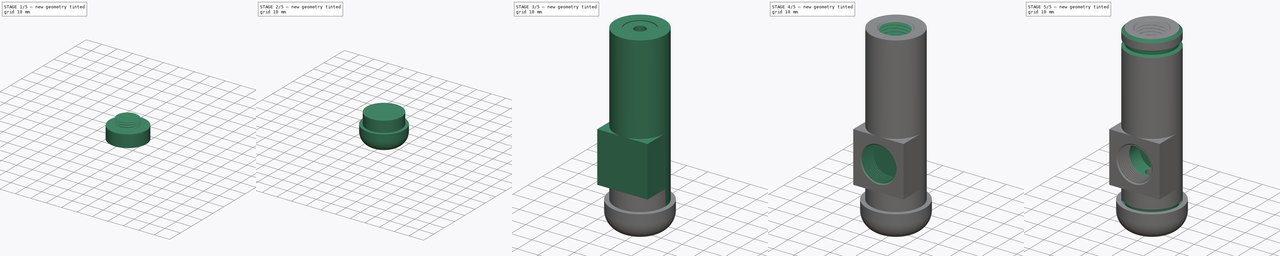
[diagram: build sequence overview — one tinted view per stage of 5, left to right]
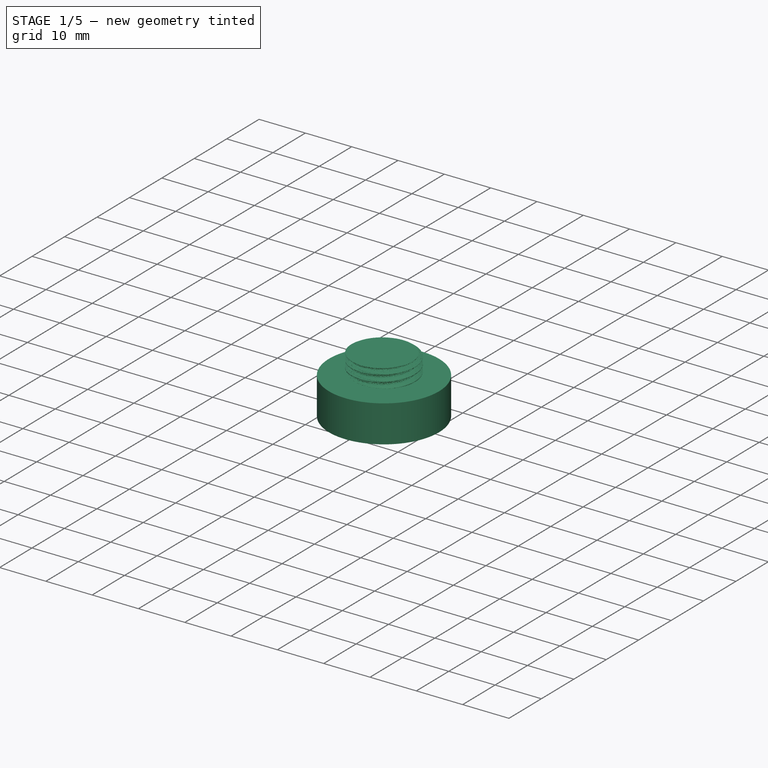
[diagram: stage 1 of 5 — iso view after this stage's code; geometry added in this stage tinted green]
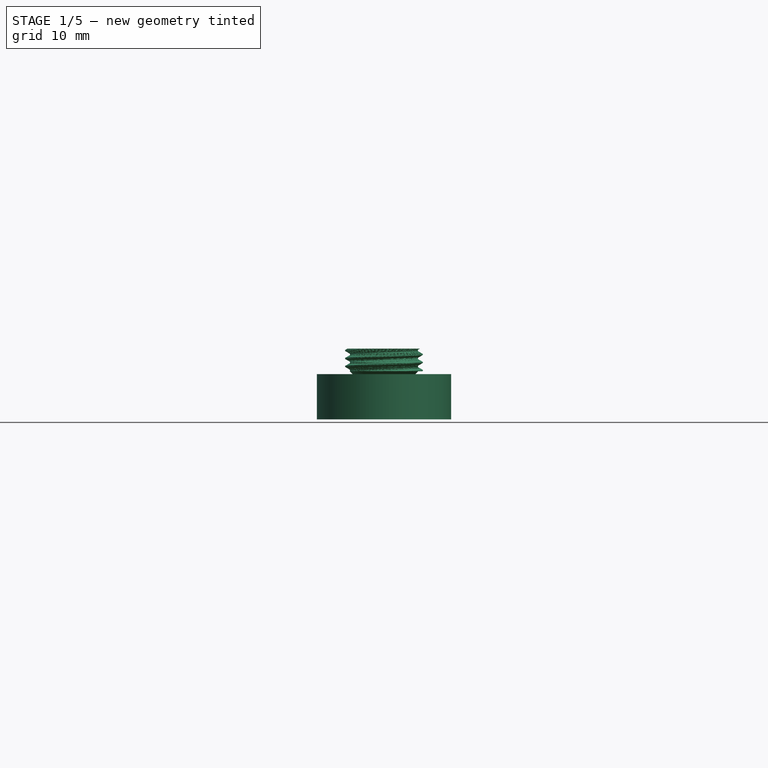
[diagram: stage 1 of 5 — front view after this stage's code; geometry added in this stage tinted green]
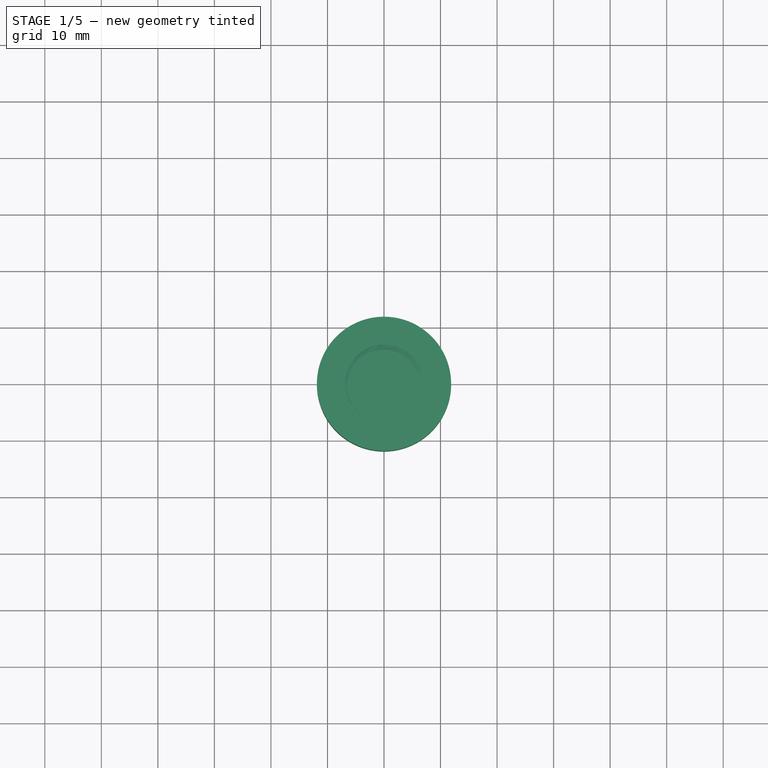
[diagram: stage 1 of 5 — top view after this stage's code; geometry added in this stage tinted green]
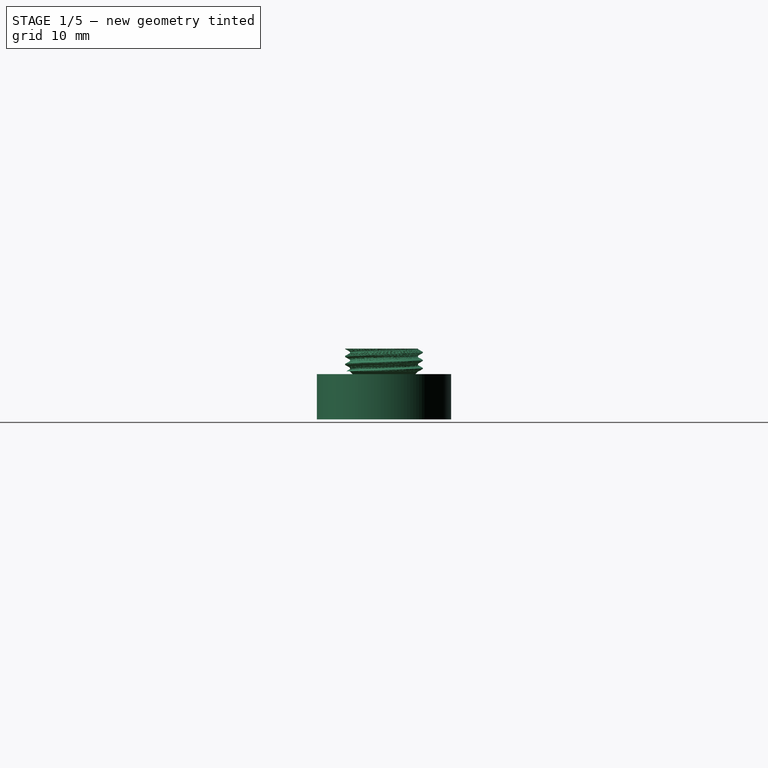
[diagram: stage 1 of 5 — right view after this stage's code; geometry added in this stage tinted green]
FCSTD DOCUMENT  (FreeCAD 1.1R20260325 (Git shallow))
Label: FinalSensorAdapterInsert
License: All rights reserved
LicenseURL: https://en.wikipedia.org/wiki/All_rights_reserved
objects: Sketcher::SketchObject×12, PartDesign::Pad×6, PartDesign::Pocket×5, PartDesign::Chamfer×5, App::Point×4, Part::Part2DObjectPython×3, Part::Helix×3, PartDesign::SubtractivePipe×2, PartDesign::Body×2, App::Part×2, PartDesign::Fillet×2, Spreadsheet::Sheet×1, PartDesign::Groove×1, PartDesign::AdditivePipe×1
note: 98 computed .brp shape members not serialized (recipe doc carries the construction recipe); baked Part::Feature solids carry a one-line shape summary decoded from their .brp

FEATURE [PartDesign::Body] Body001  label="SensorHeadInsertBody"
  AllowCompound = false
  Group = -> [Sketch010,Pad002,Sketch,Pad,Sketch011,Pad003,Sketch012,Sketch013,Pocket,Sketch014,Pocket001,Chamfer,Sketch015,Pocket002,Chamfer001,VThreadProfile,Helix,SubtractivePipe,VThreadProfile001,Helix001,SubtractivePipe001,Sketch016,Pocket003,Chamfer002,Groove,Chamfer003]
  Origin = -> Origin003
  Tip = -> Chamfer003
FEATURE [App::Part] Part001  label="SensorHeadInsert"
  Group = -> [Body001]
  Origin = -> Origin002
FEATURE [Sketcher::SketchObject] Sketch017
  ArcFitTolerance = 1e-06
  AttachmentSupport = -> [XY_Plane004]
  ExternalTypes = [0]
  FullyConstrained = true
  MakeInternals = false
  MapMode = 5
  _ExternalGeoVersion = 0
  expr: Constraints[1] = <<S>>.nipple_minor_diameter
  sketch-geometry (1):
    g0: Circle CenterX=0 CenterY=0 CenterZ=0 NormalX=0 NormalY=0 NormalZ=1 AngleXU=0 Radius=6.06
  constraints (2):
    c: Coincident(g0,g-1)
    c: Diameter(g0) = 12.12
FEATURE [PartDesign::Pad] Pad004  label="EndPad"
  Direction = (0,0,1)
  Length = 0.5
  Length2 = 10
  Profile = -> Sketch017
  ReferenceAxis = -> Sketch017 [N_Axis]
  Refine = true
  SideType = 0
  Suppressed = false
  Type = 0
  Type2 = 0
FEATURE [PartDesign::Chamfer] Chamfer004  label="EndPadChamfer"
  Angle = 45
  Base = -> Pad004 [Edge2]
  BaseFeature = -> Pad004
  ChamferType = 0
  FlipDirection = false
  Refine = true
  Size = 0.4999
  Size2 = 1
  SupportTransform = false
  Suppressed = false
  UseAllEdges = false
FEATURE [Part::Part2DObjectPython] VThreadProfile002  # Draft 2D object (typed FeaturePython)
  Area = 130.115
  AttachmentSupport = -> [Chamfer004]
  Closed = true
  Continuity = C2
  Deviation = 0.1
  Height = 4
  Helix = Helix002
  Instructions = <same value as first occurrence — deduplicated (x3 in doc)>
  InternalOrExternal = 1
  MajorDiameter = 13.75
  MajorDiameterFinal = 13.75
  MakeFace = true
  MapMode = 11
  MinorDiameter = 12.2236
  MinorDiameterFinal = 12.2236
  Parameterization = 1
  Pitch = 1.41
  Placement = pos=(0,0,0.5) rot=(0,0,1;1.5708rad)
  Points = (66) [(6.0803,0.586285,0),(5.96709,1.16154,0),(5.80784,1.72289,0),(5.60096,2.26641,0),(5.34693,2.78797,0),(5.04722,3.28346,0),(4.70397,3.74889,0),+59 more]
  Presets = 0
  Quality = 11
  ThreadCount = 2.83688
  Tolerance = 0
  Variants = 0
  Version = 1.96
  d_delta = 1.52637
  external2S_data = <same value as first occurrence — deduplicated (x3 in doc)>
  external3S_data = <same value as first occurrence — deduplicated (x3 in doc)>
  external45_data = <same value as first occurrence — deduplicated (x3 in doc)>
  external_data = <same value as first occurrence — deduplicated (x3 in doc)>
  internal2S_data = <same value as first occurrence — deduplicated (x3 in doc)>
  internal3S_data = <same value as first occurrence — deduplicated (x3 in doc)>
  internal45_data = <same value as first occurrence — deduplicated (x3 in doc)>
  internal_data = <same value as first occurrence — deduplicated (x3 in doc)>
  preset_names = <blob: 3959 chars omitted>
  presets_data = <same value as first occurrence — deduplicated (x3 in doc)>
  expr: MajorDiameter = <<S>>.nipple_thread_diameter
  expr: Pitch = <<S>>.nipple_pitch
FEATURE [Part::Helix] Helix002
  Angle = 0
  AttacherType = Attacher::AttachEngine3D
  AttachmentSupport = -> [Chamfer004]
  Height = 4
  Length = 18.2679
  LocalCoord = 0
  MapMode = 11
  Pitch = 1.41
  Placement = pos=(0,0,0.5) rot=(0,0,1;1.5708rad)
  Radius = 1
  SegmentLength = 1
  Style = 0
  expr: AttachmentOffset = VThreadProfile002.AttachmentOffset
  expr: AttachmentSupport = VThreadProfile002.AttachmentSupport
  expr: Height = VThreadProfile002.ThreadCount * VThreadProfile002.Pitch
  expr: MapMode = VThreadProfile002.MapMode
  expr: MapPathParameter = VThreadProfile002.MapPathParameter
  expr: MapReversed = VThreadProfile002.MapReversed
  expr: Pitch = VThreadProfile002.Pitch
  expr: SegmentLength = 1
FEATURE [PartDesign::AdditivePipe] AdditivePipe  label="Threads"
  AuxiliaryCurvilinear = true
  AuxiliarySpineTangent = false
  BaseFeature = -> Chamfer004
  Binormal = (0,0,0)
  Mode = 2
  Profile = -> VThreadProfile002
  Refine = true
  Spine = -> Helix002 [Edge1,Edge2,Edge3]
  SpineTangent = false
  Suppressed = false
  Transformation = 0
  Transition = 0
FEATURE [Sketcher::SketchObject] Sketch018
  ArcFitTolerance = 1e-06
  AttachmentSupport = -> [AdditivePipe]
  ExternalTypes = [0]
  FullyConstrained = true
  MakeInternals = false
  MapMode = 5
  Placement = pos=(0,0,0) rot=(1,0,0;3.14159rad)
  _ExternalGeoVersion = 0
  expr: Constraints[1] = <<S>>.nipple_thread_diameter + <<S>>.dimension_wall_thickness * 2
  sketch-geometry (1):
    g0: Circle CenterX=0 CenterY=0 CenterZ=0 NormalX=0 NormalY=0 NormalZ=1 AngleXU=0 Radius=11.875
  constraints (2):
    c: Coincident(g0,g-1)
    c: Diameter(g0) = 23.75
FEATURE [PartDesign::Pad] Pad005  label="NippleBasePad"
  BaseFeature = -> AdditivePipe
  Direction = (0,0,-1)
  Length = 8
  Length2 = 10
  Profile = -> Sketch018
  ReferenceAxis = -> Sketch018 [N_Axis]
  Refine = true
  SideType = 0
  Suppressed = false
  Type = 0
  Type2 = 0
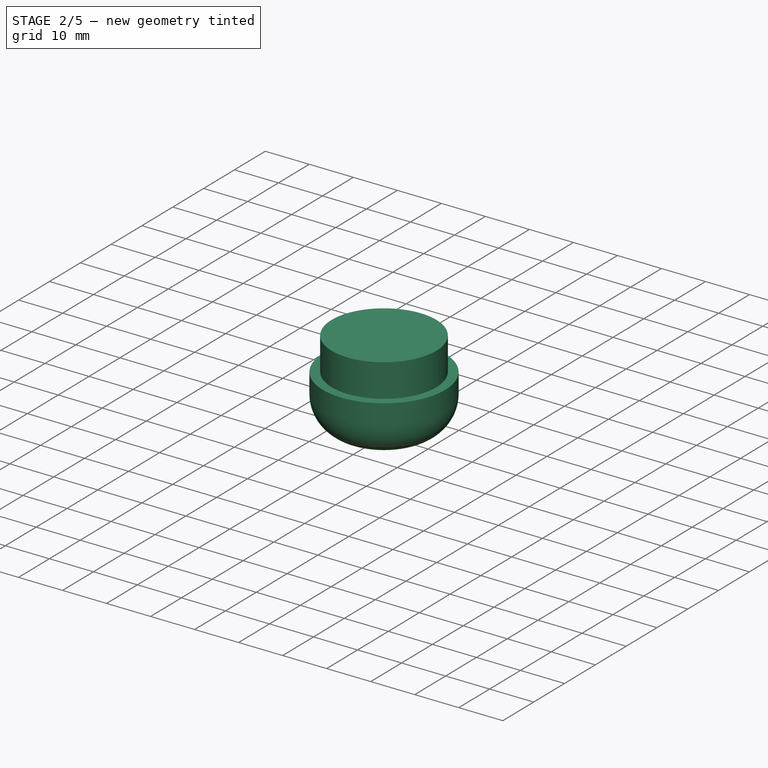
[diagram: stage 2 of 5 — iso view after this stage's code; geometry added in this stage tinted green]
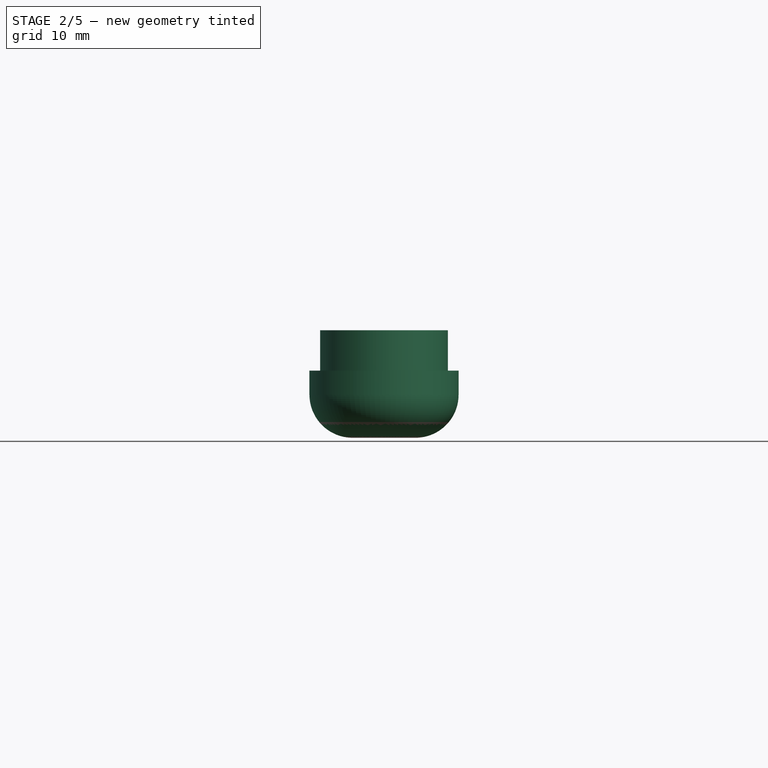
[diagram: stage 2 of 5 — front view after this stage's code; geometry added in this stage tinted green]
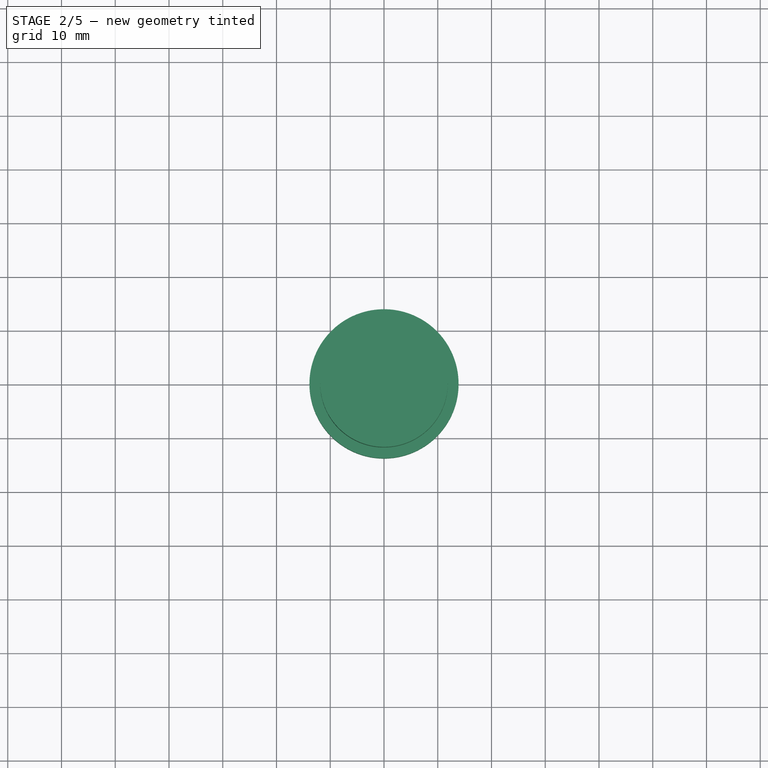
[diagram: stage 2 of 5 — top view after this stage's code; geometry added in this stage tinted green]
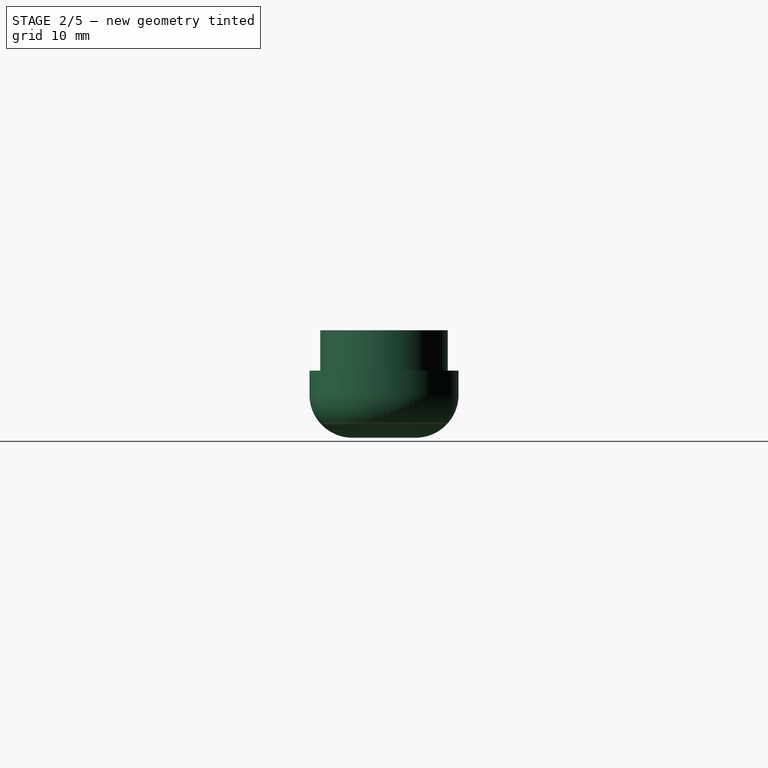
[diagram: stage 2 of 5 — right view after this stage's code; geometry added in this stage tinted green]
FEATURE [Sketcher::SketchObject] Sketch010
  ArcFitTolerance = 1e-06
  AttachmentSupport = -> [XY_Plane003]
  ExternalTypes = [0]
  FullyConstrained = true
  MakeInternals = false
  MapMode = 5
  _ExternalGeoVersion = 0
  expr: Constraints[1] = <<S>>.nipple_thread_diameter + <<S>>.dimension_wall_thickness * 2
  sketch-geometry (1):
    g0: Circle CenterX=0 CenterY=0 CenterZ=0 NormalX=0 NormalY=0 NormalZ=1 AngleXU=0 Radius=11.875
  constraints (2):
    c: Coincident(g0,g-1)
    c: Diameter(g0) = 23.75
FEATURE [PartDesign::Pad] Pad002  label="BasePad"
  Direction = (0,0,1)
  Length = 12
  Length2 = 10
  Profile = -> Sketch010
  ReferenceAxis = -> Sketch010 [N_Axis]
  Refine = true
  SideType = 0
  Suppressed = false
  Type = 0
  Type2 = 0
  expr: Length = <<S>>.dimension_base_height
FEATURE [Sketcher::SketchObject] Sketch019
  ArcFitTolerance = 1e-06
  AttachmentSupport = -> [Pad005]
  ExternalTypes = [0]
  FullyConstrained = true
  MakeInternals = false
  MapMode = 5
  Placement = pos=(0,0,-8) rot=(1,0,0;3.14159rad)
  _ExternalGeoVersion = 0
  expr: Constraints[2] = <<S>>.nipple_thread_diameter + <<S>>.dimension_wall_thickness * 2
  expr: Constraints[3] = <<S>>.nipple_thread_diameter + <<S>>.dimension_wall_thickness * 2 + 4
  sketch-geometry (2):
    g0: Circle CenterX=0 CenterY=0 CenterZ=0 NormalX=0 NormalY=0 NormalZ=1 AngleXU=0 Radius=13.875
    g1: Circle CenterX=0 CenterY=0 CenterZ=0 NormalX=0 NormalY=0 NormalZ=1 AngleXU=0 Radius=11.875
  constraints (4):
    c: Coincident(g0,g-1)
    c: Coincident(g1,g0)
    c: Diameter(g1) = 23.75
    c: Diameter(g0) = 27.75
FEATURE [PartDesign::Pad] Pad006  label="NipplePadShell"
  BaseFeature = -> Pad005
  Direction = (0,0,-1)
  Length = 12.5
  Length2 = 10
  Profile = -> Sketch019
  ReferenceAxis = -> Sketch019 [N_Axis]
  Refine = true
  Reversed = true
  SideType = 0
  Suppressed = false
  Type = 0
  Type2 = 0
FEATURE [Sketcher::SketchObject] Sketch020
  ArcFitTolerance = 1e-06
  AttachmentSupport = -> [Pad006]
  ExternalTypes = [0]
  FullyConstrained = true
  MakeInternals = false
  MapMode = 5
  Placement = pos=(0,0,-8) rot=(1,0,0;3.14159rad)
  _ExternalGeoVersion = 0
  sketch-geometry (1):
    g0: Circle CenterX=0 CenterY=0 CenterZ=0 NormalX=0 NormalY=0 NormalZ=1 AngleXU=0 Radius=0.75
  constraints (2):
    c: Coincident(g0,g-1)
    c: Diameter(g0) = 1.5
FEATURE [PartDesign::Pocket] Pocket004  label="NippleHole"
  BaseFeature = -> Pad006
  Direction = (0,0,1)
  Length = 5
  Length2 = 5
  Profile = -> Sketch020
  ReferenceAxis = -> Sketch020 [N_Axis]
  Refine = true
  SideType = 0
  Suppressed = false
  Type = 1
  Type2 = 0
FEATURE [PartDesign::Fillet] Fillet  label="NippleHoleFillet"
  Base = -> Pocket004 [Edge24]
  BaseFeature = -> Pocket004
  Radius = 1
  Refine = true
  SupportTransform = false
  Suppressed = false
  UseAllEdges = false
FEATURE [PartDesign::Fillet] Fillet001  label="NippleFillet"
  Base = -> Fillet [Edge2]
  BaseFeature = -> Fillet
  Radius = 8
  Refine = true
  SupportTransform = false
  Suppressed = false
  UseAllEdges = false
FEATURE [PartDesign::Body] Body  label="SensorHeadNippleBody"
  AllowCompound = false
  Group = -> [Sketch017,Pad004,Chamfer004,VThreadProfile002,Helix002,AdditivePipe,Sketch018,Pad005,Sketch019,Pad006,Sketch020,Pocket004,Fillet,Fillet001]
  Origin = -> Origin004
  Tip = -> Fillet001
FEATURE [App::Part] Part  label="SensorHeadNipple"
  Group = -> [Body]
  Origin = -> Origin
FEATURE [App::Point] Origin005  label="Origin"
  Role = Origin
FEATURE [App::Point] Origin006  label="Origin"
  Role = Origin
FEATURE [App::Point] Origin007  label="Origin"
  Role = Origin
FEATURE [App::Point] Origin008  label="Origin"
  Role = Origin
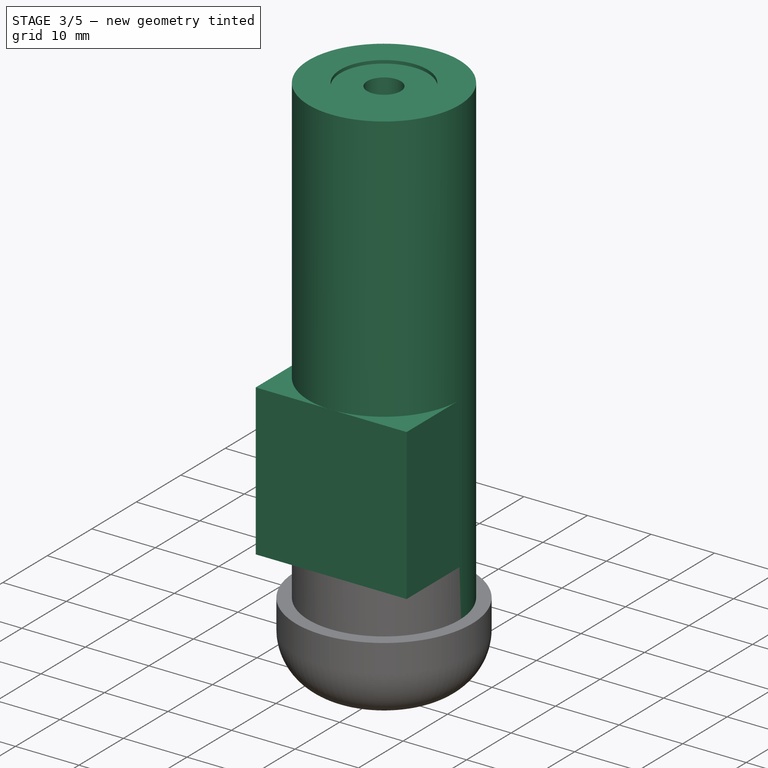
[diagram: stage 3 of 5 — iso view after this stage's code; geometry added in this stage tinted green]
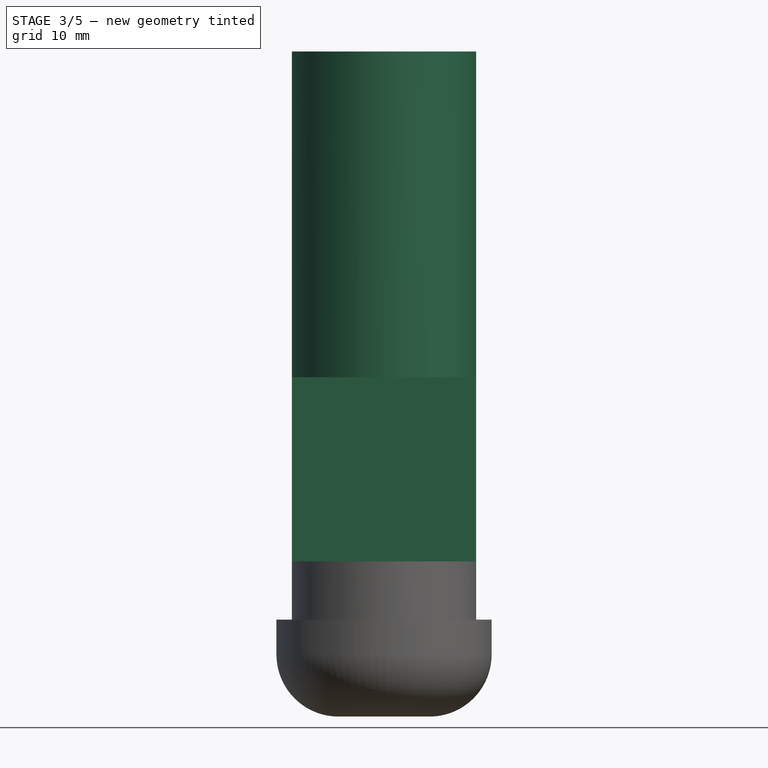
[diagram: stage 3 of 5 — front view after this stage's code; geometry added in this stage tinted green]
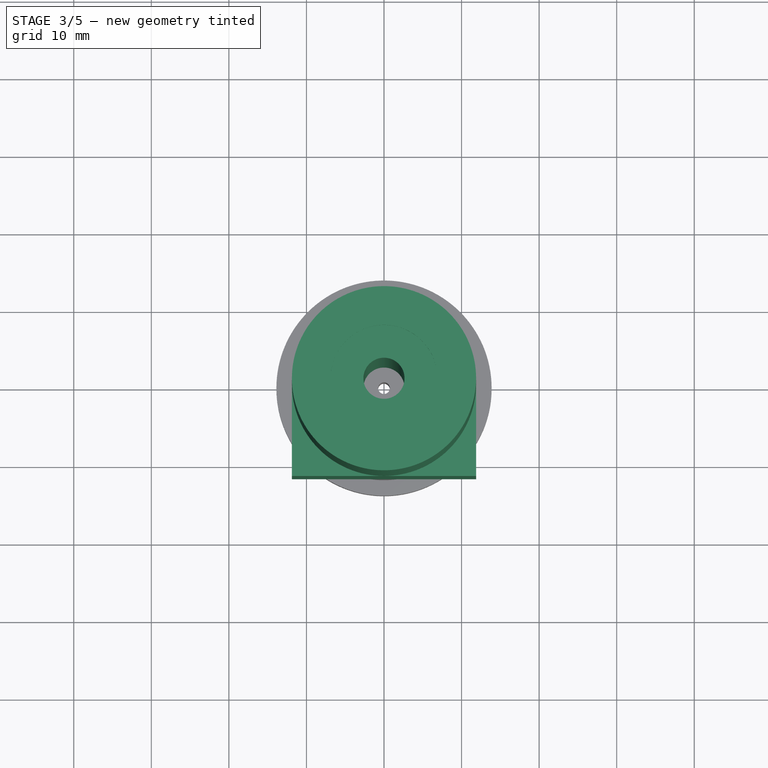
[diagram: stage 3 of 5 — top view after this stage's code; geometry added in this stage tinted green]
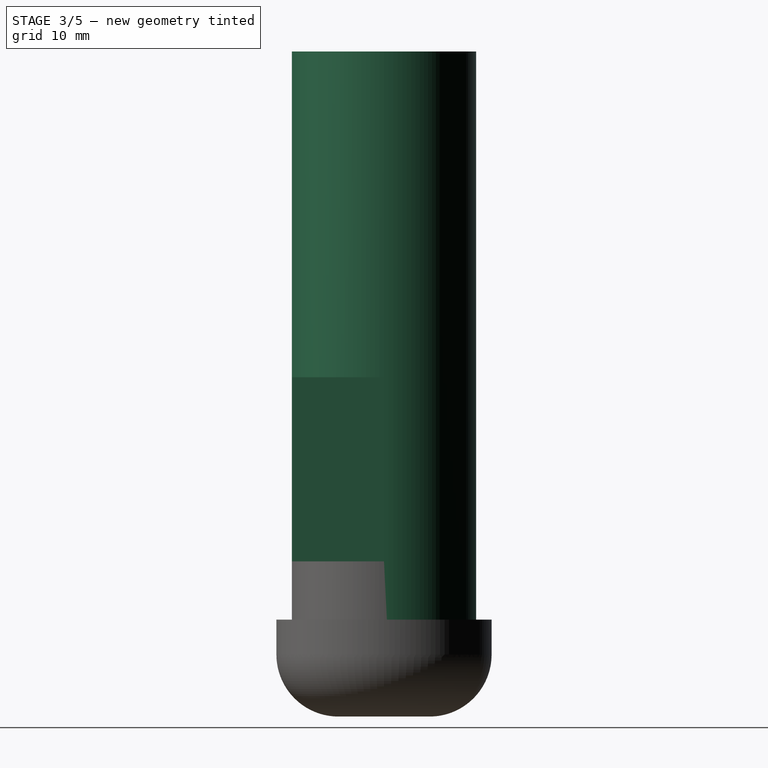
[diagram: stage 3 of 5 — right view after this stage's code; geometry added in this stage tinted green]
FEATURE [Spreadsheet::Sheet] Spreadsheet  label="S"
  cells = A2='zero_width; B2(zero_width)=18; A3='zero_length; B3(zero_length)=23.5; A4='zero_usb_width; B4(zero_usb_width)=9; A5='zero_usb_nib; B5(zero_usb_nib)=1; A6='zero_pcb_thickness; B6(zero_pcb_thickness)=1.15; A7='zero_usb_thickness; B7(zero_usb_thickness)=3.25; C7='This is also the thickest top part; A8='zero_bottom_height; B8(zero_bottom_height)=1.25; A9='zero_bottom_chip_width; B9(zero_bottom_chip_width)=7; A10='zero_pad_width; B10(zero_pad_width)=2.5; A16='ads1115_width; B16(ads1115_width)=28; A17='ads1115_length; B17(ads1115_length)=17.2; A18='ads115_pcb_thickness; B18(ads115_pcb_thickness)=1.5; A19='ads115_holes; B19(ads115_holes)=2.4; A22='charger_width; B22(charger_width)=17.02; A23='charger_length; B23(charger_length)=28; A24='charger_usb_width; B24(charger_usb_width)=9; A25='charger_holes; B25(charger_holes)=1.5; A26='charger_pcb_thickness; B26(charger_pcb_thickness)=1.6; A31='oled_width; B31(oled_width)=27.5; C31='https://thepihut.com/products/blue-0-96-oled-display-module-128x94?srsltid=AfmBOoqjCmrL4VVzqR_EE5hcJSdx-CRojF6zMIyrO1bcx0NnoYyN6zFz; A32='oled_length; B32(oled_length)=27.5; A33='oled_holes; B33(oled_holes)=2; A34='oled_pcb_thickness; B34(oled_pcb_thickness)=1.25; A35='oled_screen_height; B35(oled_screen_height)=1.75; A36='oled_screen_width; B36(oled_screen_width)=24.7; A37='oled_screen_length; B37(oled_screen_length)=16.6; A38='oled_hole_top_edge; B38(oled_hole_top_edge)=1.1; A39='oled_hole_side_edge; B39(oled_hole_side_edge)=1.15; A40='oled_hole_bottom_edge; B40(oled_hole_bottom_edge)=1; A43='battery_width; B43(battery_width)=30; A44='battery_length; B44(battery_length)=42; A45='batter_depth; B45(batter_depth)=8.2; A49='switch_width; B49(switch_width)=11.67; A50='switch_length; B50(switch_length)=18.65; A51='switch_depth; B51(switch_depth)=11.1; A52='swith_length; B52(swith_length)=6; A53='switch_button_diameter; B53(switch_button_diameter)=3.5; A54='switch_button_height; B54(switch_button_height)=1.75; A55='switch_top_thingies; B55(switch_top_thingies)=0.6; A61='vr_back_depth; B61(vr_back_depth)=1.3; A62='vr_hole; B62(vr_hole)=3.7; A63='vr_hole_top_edge; B63(vr_hole_top_edge)=1; A66='sensor_diameter; B66(sensor_diameter)=29.5; A67='sensor_length; B67(sensor_length)=41.5; A68='sensor_thread_diameter; B68(sensor_thread_diameter)=16; A69='sensor_thread_pitch; B69(sensor_thread_pitch)=1; A70='sensor_thread_per_inch; B70(sensor_thread_per_inch)=25.4; A71='sensor_thread_length; B71(sensor_thread_length)=7.5; A72='sensor_smaller_body_diameter; B72(sensor_smaller_body_diameter)=26.3; A74='nipple_minor_diameter; B74(nipple_minor_diameter)=12.12; A75='nipple_pitch; B75(nipple_pitch)=1.41; A76='nipple_thread_diameter; B76(nipple_thread_diameter)=13.75; A77='nipple_thread_per_inch; B77(nipple_thread_per_inch)=18; A78='nipple_thread_length; B78(nipple_thread_length)=12.6; A80='dimension_base_height; B80(dimension_base_height)=12; A81='dimension_extender_height; B81(dimension_extender_height)=42; A83='insert_diameter; B83(insert_diameter)=5.3; A85='dimension_wall_thickness; B85(dimension_wall_thickness)=5
FEATURE [Sketcher::SketchObject] Sketch
  ArcFitTolerance = 1e-06
  AttachmentSupport = -> [Pad002]
  ExternalTypes = [0]
  FullyConstrained = true
  MakeInternals = false
  MapMode = 5
  Placement = pos=(0,0,12) rot=(0,0,1;0rad)
  _ExternalGeoVersion = 0
  expr: Constraints[10] = <<S>>.nipple_thread_diameter + <<S>>.dimension_wall_thickness * 2
  expr: Constraints[11] = (<<S>>.nipple_thread_diameter + <<S>>.dimension_wall_thickness * 2) / 2
  expr: Constraints[6] = <<S>>.nipple_thread_diameter + <<S>>.dimension_wall_thickness * 2
  expr: Constraints[9] = (<<S>>.nipple_thread_diameter + <<S>>.dimension_wall_thickness * 2) / 2
  sketch-geometry (4):
    g0: LineSegment StartX=-11.875 StartY=8.47222e-08 StartZ=0 EndX=-11.875 EndY=-11.875 EndZ=0
    g1: LineSegment StartX=-11.875 StartY=-11.875 StartZ=0 EndX=11.875 EndY=-11.875 EndZ=0
    g2: LineSegment StartX=11.875 StartY=-11.875 StartZ=0 EndX=11.875 EndY=-4.26891e-05 EndZ=0
    g3: ArcOfCircle CenterX=0 CenterY=0 CenterZ=0 NormalX=0 NormalY=0 NormalZ=1 AngleXU=0 Radius=11.875 StartAngle=6.28318 EndAngle=9.42478
  constraints (12):
    c: Coincident(g0,g1)
    c: Coincident(g1,g2)
    c: Vertical(g0)
    c: Vertical(g2)
    c: Horizontal(g1)
    c: Coincident(g3,g-1)
    c: Diameter(g3) = 23.75
    c: Coincident(g3,g0)
    c: Coincident(g3,g2)
    c: DistanceY(g2,g2) = 11.875
    c: DistanceX(g0,g2) = 23.75
    c: DistanceX(g0,g3) = 11.875
FEATURE [PartDesign::Pad] Pad  label="SensorPad"
  BaseFeature = -> Pad002
  Direction = (0,0,1)
  Length = 23.75
  Length2 = 10
  Profile = -> Sketch
  ReferenceAxis = -> Sketch [N_Axis]
  Refine = true
  SideType = 0
  Suppressed = false
  Type = 0
  Type2 = 0
  expr: Length = <<S>>.nipple_thread_diameter + <<S>>.dimension_wall_thickness * 2
FEATURE [Sketcher::SketchObject] Sketch011
  ArcFitTolerance = 1e-06
  AttachmentSupport = -> [Pad]
  ExternalTypes = [0]
  FullyConstrained = true
  MakeInternals = false
  MapMode = 5
  Placement = pos=(0,0,35.75) rot=(0,0,1;0rad)
  _ExternalGeoVersion = 0
  expr: Constraints[1] = <<S>>.nipple_thread_diameter + <<S>>.dimension_wall_thickness * 2
  sketch-geometry (1):
    g0: Circle CenterX=0 CenterY=0 CenterZ=0 NormalX=0 NormalY=0 NormalZ=1 AngleXU=0 Radius=11.875
  constraints (2):
    c: Coincident(g0,g-1)
    c: Diameter(g0) = 23.75
FEATURE [PartDesign::Pad] Pad003  label="ExtensionPad"
  BaseFeature = -> Pad
  Direction = (0,0,1)
  Length = 42
  Length2 = 10
  Profile = -> Sketch011
  ReferenceAxis = -> Sketch011 [N_Axis]
  Refine = true
  SideType = 0
  Suppressed = false
  Type = 0
  Type2 = 0
  expr: Length = <<S>>.dimension_extender_height
FEATURE [Sketcher::SketchObject] Sketch013
  ArcFitTolerance = 1e-06
  ExternalTypes = [0]
  FullyConstrained = true
  MakeInternals = false
  MapMode = 5
  Placement = pos=(0,0,77.75) rot=(0,0,1;0rad)
  _ExternalGeoVersion = 0
  expr: Constraints[1] = <<S>>.insert_diameter
  sketch-geometry (1):
    g0: Circle CenterX=0 CenterY=0 CenterZ=0 NormalX=0 NormalY=0 NormalZ=1 AngleXU=0 Radius=2.65
  constraints (2):
    c: Coincident(g0,g-1)
    c: Diameter(g0) = 5.3
FEATURE [PartDesign::Pocket] Pocket  label="InsertPocketThruAll"
  BaseFeature = -> Pad003
  Direction = (0,0,-1)
  Length = 5
  Length2 = 5
  Profile = -> Sketch013
  ReferenceAxis = -> Sketch013 [N_Axis]
  Refine = true
  SideType = 0
  Suppressed = false
  Type = 1
  Type2 = 0
FEATURE [Sketcher::SketchObject] Sketch014
  ArcFitTolerance = 1e-06
  AttachmentSupport = -> [Pocket]
  ExternalTypes = [0]
  FullyConstrained = true
  MakeInternals = false
  MapMode = 5
  Placement = pos=(0,0,77.75) rot=(0,0,1;0rad)
  _ExternalGeoVersion = 0
  expr: Constraints[1] = <<S>>.nipple_thread_diameter
  sketch-geometry (1):
    g0: Circle CenterX=0 CenterY=0 CenterZ=0 NormalX=0 NormalY=0 NormalZ=1 AngleXU=0 Radius=6.875
  constraints (2):
    c: Coincident(g0,g-1)
    c: Diameter(g0) = 13.75
FEATURE [PartDesign::Pocket] Pocket001  label="NippleThreadChamferPocket"
  BaseFeature = -> Pocket
  Direction = (0,0,-1)
  Length = 0.5
  Length2 = 5
  Profile = -> Sketch014
  ReferenceAxis = -> Sketch014 [N_Axis]
  Refine = true
  SideType = 0
  Suppressed = false
  Type = 0
  Type2 = 0
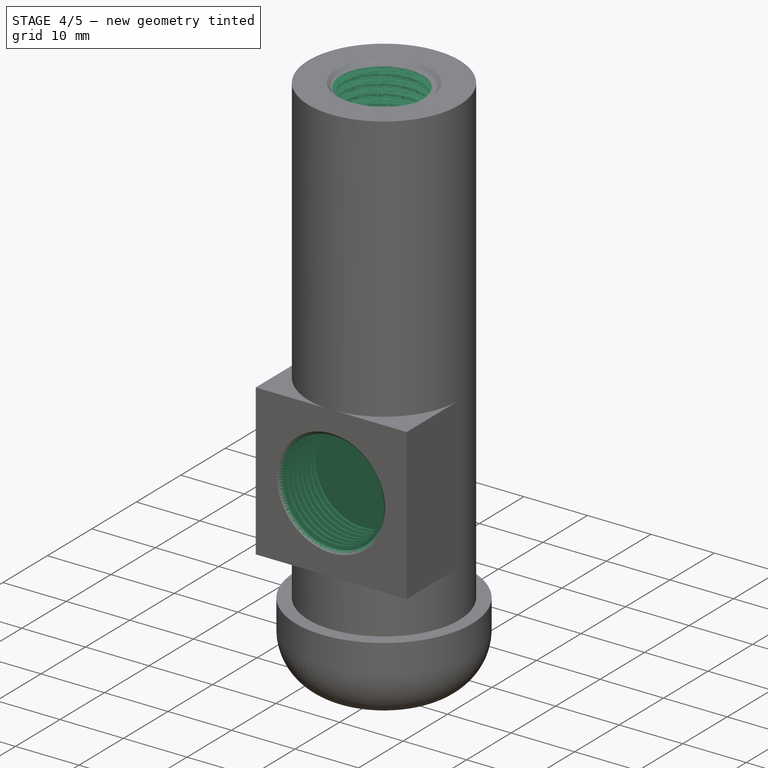
[diagram: stage 4 of 5 — iso view after this stage's code; geometry added in this stage tinted green]
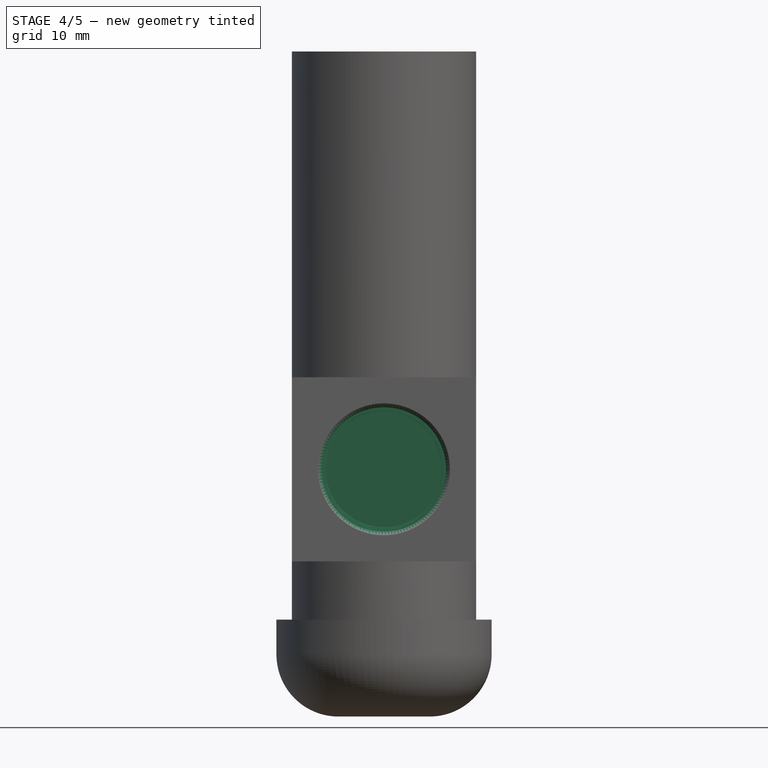
[diagram: stage 4 of 5 — front view after this stage's code; geometry added in this stage tinted green]
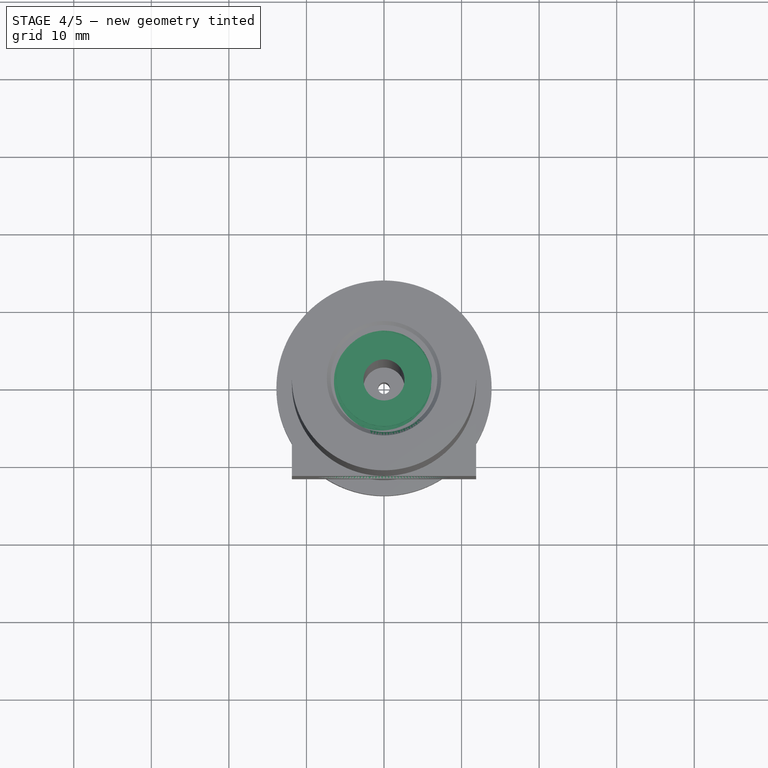
[diagram: stage 4 of 5 — top view after this stage's code; geometry added in this stage tinted green]
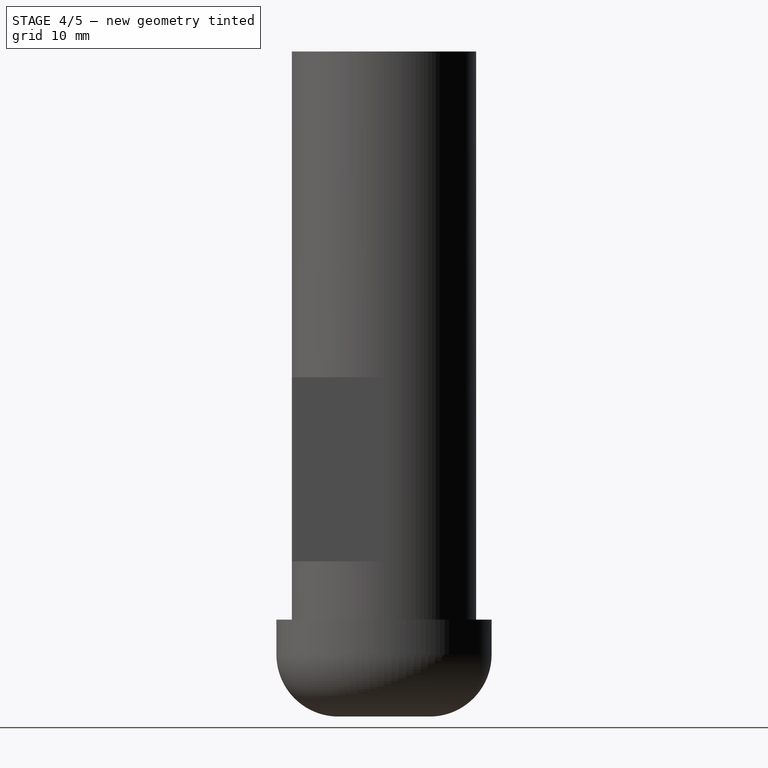
[diagram: stage 4 of 5 — right view after this stage's code; geometry added in this stage tinted green]
FEATURE [PartDesign::Chamfer] Chamfer  label="NippleThreadChamfer"
  Angle = 45
  Base = -> Pocket001 [Edge22]
  BaseFeature = -> Pocket001
  ChamferType = 0
  FlipDirection = false
  Refine = true
  Size = 0.4999
  Size2 = 1
  SupportTransform = false
  Suppressed = false
  UseAllEdges = false
FEATURE [Sketcher::SketchObject] Sketch015
  ArcFitTolerance = 1e-06
  AttachmentSupport = -> [Chamfer]
  ExternalTypes = [0]
  FullyConstrained = true
  MakeInternals = false
  MapMode = 5
  Placement = pos=(0,-11.875,0) rot=(1,0,0;1.5708rad)
  _ExternalGeoVersion = 0
  expr: Constraints[1] = <<S>>.sensor_thread_diameter
  expr: Constraints[2] = <<S>>.dimension_base_height + (<<S>>.nipple_thread_diameter + <<S>>.dimension_wall_thickness * 2) / 2
  sketch-geometry (1):
    g0: Circle CenterX=0 CenterY=23.875 CenterZ=0 NormalX=0 NormalY=0 NormalZ=1 AngleXU=0 Radius=8
  constraints (3):
    c: PointOnObject(g0,g-2)
    c: Diameter(g0) = 16
    c: DistanceY(g-1,g0) = 23.875
FEATURE [PartDesign::Pocket] Pocket002  label="SensorThreadChamferPocket"
  BaseFeature = -> Chamfer
  Direction = (0,1,-2e-16)
  Length = 0.5
  Length2 = 5
  Profile = -> Sketch015
  ReferenceAxis = -> Sketch015 [N_Axis]
  Refine = true
  SideType = 0
  Suppressed = false
  Type = 0
  Type2 = 0
FEATURE [PartDesign::Chamfer] Chamfer001  label="SensorThreadChamfer"
  Angle = 45
  Base = -> Pocket002 [Edge28]
  BaseFeature = -> Pocket002
  ChamferType = 0
  FlipDirection = false
  Refine = true
  Size = 0.4999
  Size2 = 1
  SupportTransform = false
  Suppressed = false
  UseAllEdges = false
FEATURE [Part::Part2DObjectPython] VThreadProfile  # Draft 2D object (typed FeaturePython)
  Area = 133.026
  AttachmentSupport = -> [Chamfer001]
  Closed = true
  Continuity = C2
  Deviation = 0.1
  Height = 12.6
  Helix = Helix
  Instructions = Expand this with the ... button to view instructions | Sweep this object along a helix of the same pitch to produce your thread. | It is recommended to make the helix in the ThreadProfile workbench. | If there is an active Body the ThreadProfile object will be put into it.,If not it can be dragged and dropped into the body later. | If there is an active Body when the helix is made there will be made a ShapeBinder for it | For internal threads you will need to cut the Sweep object out of a cylinder, or if using Part Design sweep it as a Subtractive Pipe. | Always use Frenet mode | I have provided some presets, but it is possible there could be some errors.  Double check for mission critical applications. | Also, the tolerances might be different from what you wish to have.  I believe the internal minor diameters are all minimum and the external are all maximum.
  InternalOrExternal = 0
  MajorDiameter = 13.75
  MajorDiameterFinal = 13.95
  MakeFace = true
  MapMode = 11
  MinorDiameter = 12.122
  MinorDiameterFinal = 12.322
  Parameterization = 1
  Pitch = 1.41
  Placement = pos=(9e-16,0,77.75) rot=(0.707107,-0.707107,0;3.14159rad)
  Points = (66) [(6.13257,0.591326,0),(6.0475,1.17719,0),(5.9066,1.75219,0),(5.71116,2.31101,0),(5.46298,2.84849,0),(5.16437,3.35967,0),(4.81807,3.83982,0),+59 more]
  Presets = 0
  Quality = 11
  ThreadCount = 8.93617
  Tolerance = 0.2
  Variants = 0
  Version = 1.96
  d_delta = 1.62798
  external2S_data = [-0.00461051,-0.00886426,-0.0128148,-0.0165028,-0.0199596,-0.0232105,-0.0262759,-0.0291725,-0.0319145,-0.0345137,-0.0369805,-0.0393235,-0.0415505,-0.0436681,-0.0456823,-0.0475981,-0.0494204,-0.0511532,-0.0528003,-0.0543649,-0.0558502,+698 more]
  external3S_data = [-0.00677828,-0.0128149,-0.0182584,-0.0232106,-0.0277444,-0.0319145,-0.0357632,-0.0393236,-0.0426227,-0.0456823,-0.0485208,-0.0511533,-0.0535928,-0.0558503,-0.0579353,-0.059856,-0.0616195,-0.0632319,-0.0646984,-0.0660239,-0.0672123,+698 more]
  external45_data = [-0.00137363,-0.00271738,-0.00403219,-0.00531893,-0.00657844,-0.00781148,-0.00901878,-0.010201,-0.0113589,-0.012493,-0.0136039,-0.0146921,-0.0157583,-0.0168028,-0.0178261,-0.0188288,-0.0198112,-0.0207738,-0.0217169,-0.0226409,-0.0235462,+698 more]
  external_data = [-0.00235387,-0.00461052,-0.00677828,-0.00886428,-0.0108747,-0.0128149,-0.0146895,-0.0165028,-0.0182584,-0.0199597,-0.0216095,-0.0232106,-0.0247653,-0.0262759,-0.0277444,-0.0291725,-0.0305621,-0.0319145,-0.0332313,-0.0345138,-0.0357632,+698 more]
  internal2S_data = [0,0,0,0,0,0,0,0,0,0,0,0,0,0,0,0,0,0,0,0,0,0,0,0,0,0,0,0,0,0,0,0,0,0,0,0,0,0,0,0,0,0,0,0,0,0,0,0,0,0,0,0,0,0,0,0,0,0,0,0,0,0,0,0,0,0,0,0,0,0,0,0,0,0,0,0,0,0,0,0,0,0,0,0,0,0,0,0,0,0,0.00481128,0.00962256,0.0144338,0.0192451,0.0240564,+624 more]
  internal3S_data = [0,0,0,0,0,0,0,0,0,0,0,0,0,0,0,0,0,0,0,0,0,0,0,0,0,0,0,0,0,0,0,0,0,0,0,0,0,0,0,0,0,0,0,0,0,0,0,0,0,0,0,0,0,0,0,0,0,0,0,0,0.00721688,0.0144338,0.0216506,0.0288675,0.0360844,0.0433013,0.0505181,0.057735,0.0649519,0.0721688,0.0793857,0.0866025,+647 more]
  internal45_data = [0,0,0,0,0,0,0,0,0,0,0,0,0,0,0,0,0,0,0,0,0,0,0,0,0,0,0,0,0,0,0,0,0,0,0,0,0,0,0,0,0,0,0,0,0,0,0,0,0,0,0,0,0,0,0,0,0,0,0,0,0,0,0,0,0,0,0,0,0,0,0,0,0,0,0,0,0,0,0,0,0,0,0,0,0,0,0,0,0,0,0,0,0,0,0,0,0,0,0,0,0,0,0,0,0,0,0,0,0,0,0,0,0,0,0,0,0,0,0,0,+599 more]
  internal_data = [0,0,0,0,0,0,0,0,0,0,0,0,0,0,0,0,0,0,0,0,0,0,0,0,0,0,0,0,0,0,0,0,0,0,0,0,0,0,0,0,0,0,0,0,0,0,0,0,0,0,0,0,0,0,0,0,0,0,0,0,0,0,0,0,0,0,0,0,0,0,0,0,0,0,0,0,0,0,0,0,0,0,0,0,0,0,0,0,0,0,0,0,0,0,0,0,0,0,0,0,0,0,0,0,0,0,0,0,0,0,0,0,0,0,0,0,0,0,0,0,+599 more]
  preset_names = <blob: 3959 chars omitted>
  presets_data = [0,0,0,2.20878,24.1173,24.6888,0.25,0.693,0.729,0.25,0.793,0.829,0.25,0.893,0.929,0.3,1.032,1.075,0.35,1.171,1.221,0.35,1.371,1.421,0.4,1.509,1.567,0.45,1.648,1.713,0.45,1.948,2.013,0.5,2.387,2.459,0.6,2.764,2.85,0.7,3.141,3.242,0.75,3.58,+712 more]
  expr: Height = <<S>>.nipple_thread_length
  expr: MajorDiameter = <<S>>.nipple_thread_diameter
  expr: Pitch = <<S>>.nipple_pitch
FEATURE [Part::Helix] Helix
  Angle = 0
  AttacherType = Attacher::AttachEngine3D
  AttachmentSupport = -> [Chamfer001]
  Height = 12.6
  Length = 57.544
  LocalCoord = 0
  MapMode = 11
  Pitch = 1.41
  Placement = pos=(9e-16,0,77.75) rot=(0.707107,-0.707107,0;3.14159rad)
  Radius = 1
  SegmentLength = 1
  Style = 0
  expr: AttachmentOffset = VThreadProfile.AttachmentOffset
  expr: AttachmentSupport = VThreadProfile.AttachmentSupport
  expr: Height = VThreadProfile.ThreadCount * VThreadProfile.Pitch
  expr: MapMode = VThreadProfile.MapMode
  expr: MapPathParameter = VThreadProfile.MapPathParameter
  expr: MapReversed = VThreadProfile.MapReversed
  expr: Pitch = VThreadProfile.Pitch
  expr: SegmentLength = 1
FEATURE [PartDesign::SubtractivePipe] SubtractivePipe  label="NippleThreads"
  AuxiliaryCurvilinear = true
  AuxiliarySpineTangent = false
  BaseFeature = -> Chamfer001
  Binormal = (0,0,0)
  Mode = 2
  Profile = -> VThreadProfile
  Refine = true
  Spine = -> Helix [Edge1,Edge2,Edge3,Edge4,Edge5,Edge6,Edge7,Edge8,Edge9]
  SpineTangent = false
  Suppressed = false
  Transformation = 0
  Transition = 0
FEATURE [Part::Part2DObjectPython] VThreadProfile001  # Draft 2D object (typed FeaturePython)
  Area = 189.457
  AttachmentSupport = -> [SubtractivePipe]
  Closed = true
  Continuity = C2
  Deviation = 0.1
  Height = 7.5
  Helix = Helix001
  Instructions = <same value as first occurrence — deduplicated (x3 in doc)>
  InternalOrExternal = 0
  MajorDiameter = 16
  MajorDiameterFinal = 16.2
  MakeFace = true
  MapMode = 11
  MinorDiameter = 14.8454
  MinorDiameterFinal = 15.0454
  Parameterization = 1
  Pitch = 1
  Placement = pos=(0,-11.875,23.875) rot=(0.57735,-0.57735,-0.57735;4.18879rad)
  Points = (66) [(7.48797,0.722019,0),(7.38411,1.43737,0),(7.21206,2.13945,0),(6.97342,2.82178,0),(6.6704,3.47805,0),(6.30579,4.10221,0),(5.88295,4.68849,0),+59 more]
  Presets = 0
  Quality = 11
  ThreadCount = 7.5
  Tolerance = 0.2
  Variants = 0
  Version = 1.96
  d_delta = 1.15459
  external2S_data = <same value as first occurrence — deduplicated (x3 in doc)>
  external3S_data = <same value as first occurrence — deduplicated (x3 in doc)>
  external45_data = <same value as first occurrence — deduplicated (x3 in doc)>
  external_data = <same value as first occurrence — deduplicated (x3 in doc)>
  internal2S_data = <same value as first occurrence — deduplicated (x3 in doc)>
  internal3S_data = <same value as first occurrence — deduplicated (x3 in doc)>
  internal45_data = <same value as first occurrence — deduplicated (x3 in doc)>
  internal_data = <same value as first occurrence — deduplicated (x3 in doc)>
  preset_names = <blob: 3959 chars omitted>
  presets_data = <same value as first occurrence — deduplicated (x3 in doc)>
  expr: Height = <<S>>.sensor_thread_length
  expr: MajorDiameter = <<S>>.sensor_thread_diameter
FEATURE [Part::Helix] Helix001
  Angle = 0
  AttacherType = Attacher::AttachEngine3D
  AttachmentSupport = -> [SubtractivePipe]
  Height = 7.5
  Length = 47.717
  LocalCoord = 0
  MapMode = 11
  Pitch = 1
  Placement = pos=(0,-11.875,23.875) rot=(0.57735,-0.57735,-0.57735;4.18879rad)
  Radius = 1
  SegmentLength = 1
  Style = 0
  expr: AttachmentOffset = VThreadProfile001.AttachmentOffset
  expr: AttachmentSupport = VThreadProfile001.AttachmentSupport
  expr: Height = VThreadProfile001.ThreadCount * VThreadProfile001.Pitch
  expr: MapMode = VThreadProfile001.MapMode
  expr: MapPathParameter = VThreadProfile001.MapPathParameter
  expr: MapReversed = VThreadProfile001.MapReversed
  expr: Pitch = VThreadProfile001.Pitch
  expr: SegmentLength = 1
FEATURE [PartDesign::SubtractivePipe] SubtractivePipe001  label="SensorThreads"
  AuxiliaryCurvilinear = true
  AuxiliarySpineTangent = false
  BaseFeature = -> SubtractivePipe
  Binormal = (0,0,0)
  Mode = 2
  Profile = -> VThreadProfile001
  Refine = true
  Spine = -> Helix001
  SpineTangent = false
  Suppressed = false
  Transformation = 0
  Transition = 0
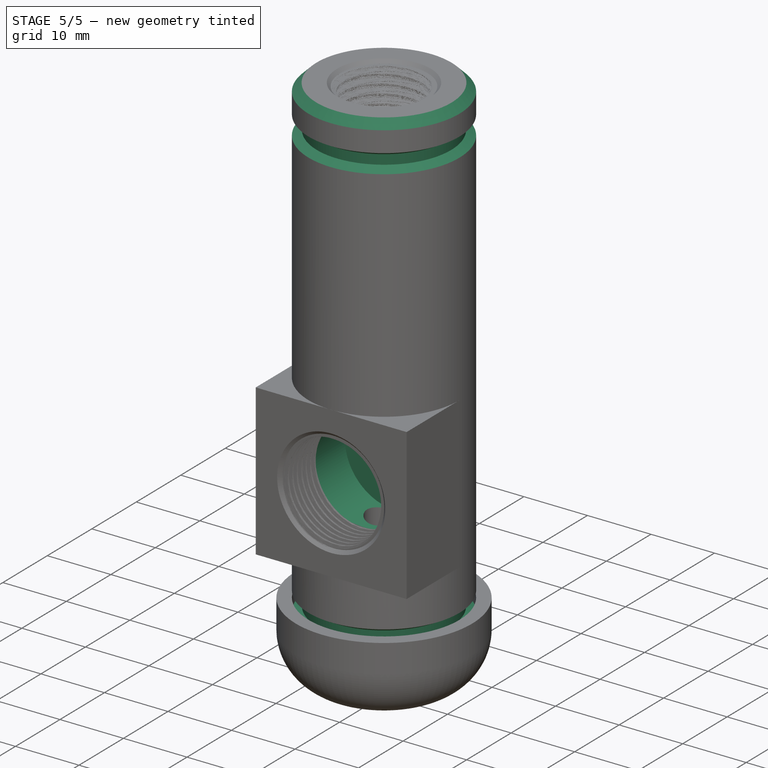
[diagram: stage 5 of 5 — iso view after this stage's code; geometry added in this stage tinted green]
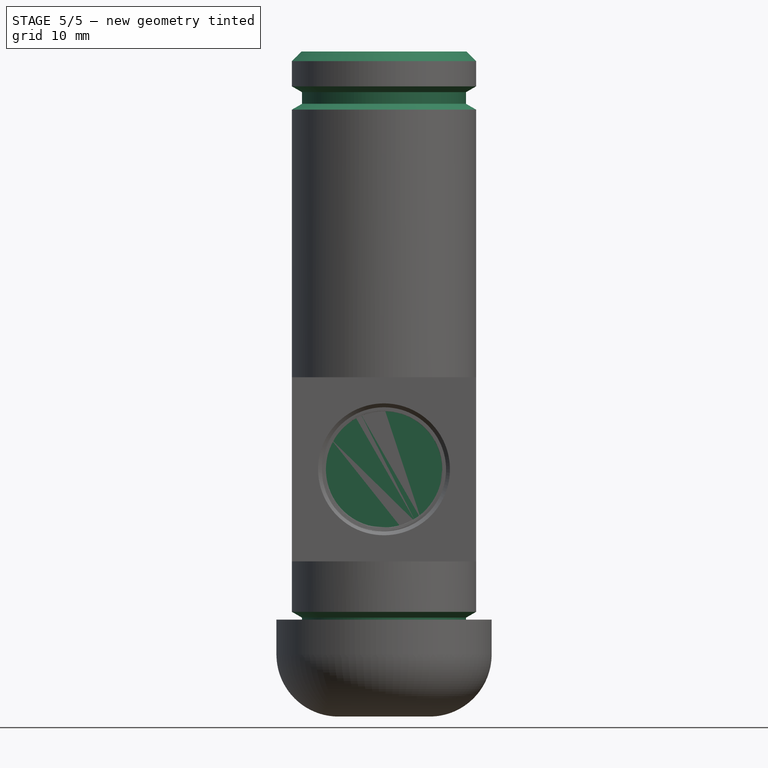
[diagram: stage 5 of 5 — front view after this stage's code; geometry added in this stage tinted green]
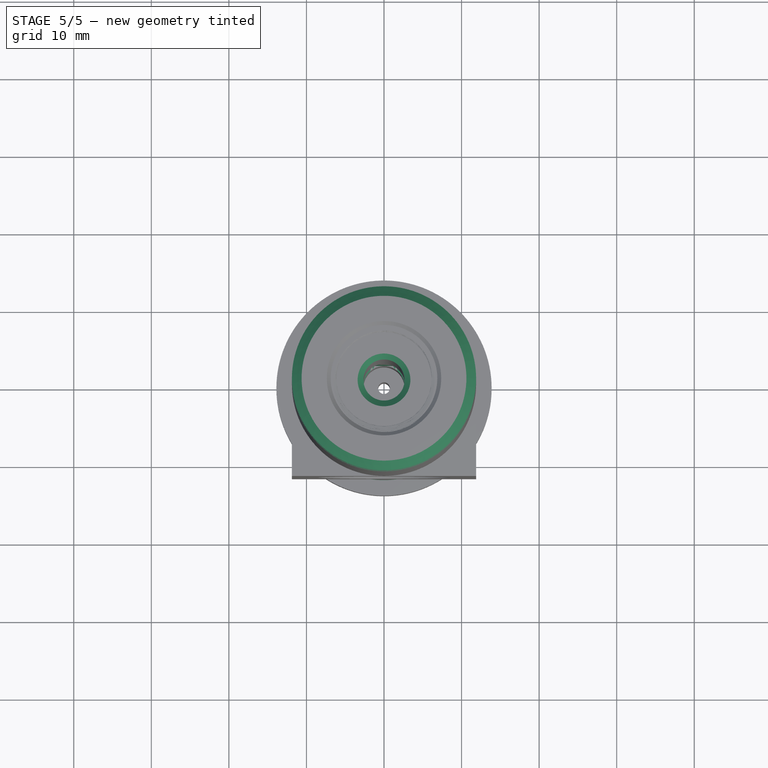
[diagram: stage 5 of 5 — top view after this stage's code; geometry added in this stage tinted green]
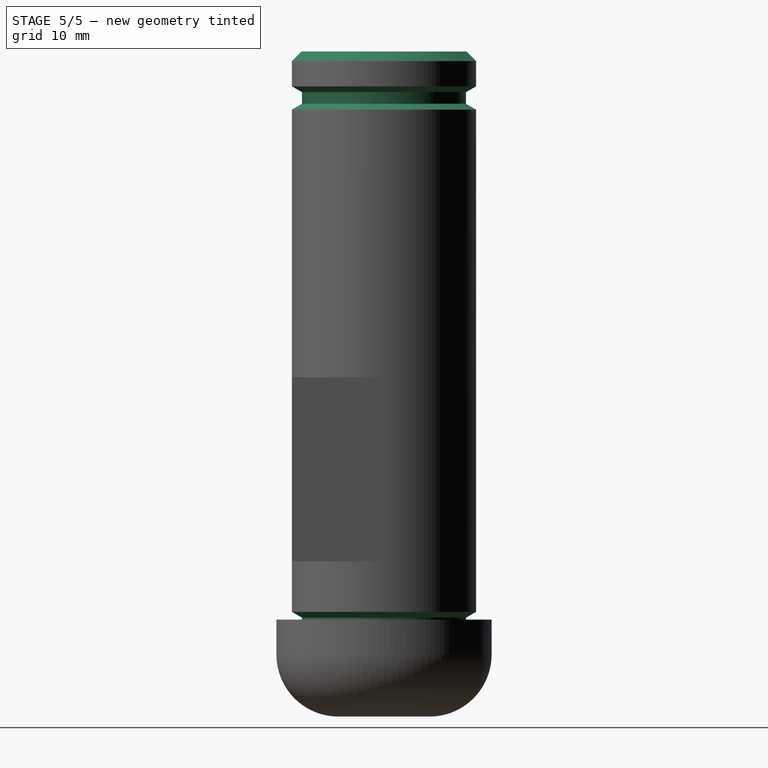
[diagram: stage 5 of 5 — right view after this stage's code; geometry added in this stage tinted green]
FEATURE [Sketcher::SketchObject] Sketch016
  ArcFitTolerance = 1e-06
  AttachmentSupport = -> [SubtractivePipe001]
  ExternalTypes = [0]
  FullyConstrained = true
  MakeInternals = false
  MapMode = 5
  Placement = pos=(-7.98946e-11,-4.37504,1.94886e-09) rot=(1,0,0;1.5708rad)
  _ExternalGeoVersion = 0
  expr: Constraints[1] = <<S>>.sensor_thread_diameter
  expr: Constraints[2] = <<S>>.dimension_base_height + (<<S>>.nipple_thread_diameter + <<S>>.dimension_wall_thickness * 2) / 2
  sketch-geometry (1):
    g0: Circle CenterX=0 CenterY=23.875 CenterZ=0 NormalX=0 NormalY=0 NormalZ=1 AngleXU=0 Radius=8
  constraints (3):
    c: PointOnObject(g0,g-2)
    c: Diameter(g0) = 16
    c: DistanceY(g-1,g0) = 23.875
FEATURE [PartDesign::Pocket] Pocket003  label="SensorAirPocket"
  BaseFeature = -> SubtractivePipe001
  Direction = (1.82614e-11,1,-4.45449e-10)
  Length = 7.025
  Length2 = 5
  Profile = -> Sketch016
  ReferenceAxis = -> Sketch016 [N_Axis]
  Refine = true
  SideType = 0
  Suppressed = false
  Type = 0
  Type2 = 0
  expr: Length = -<<S>>.sensor_thread_length + (<<S>>.nipple_thread_diameter + <<S>>.dimension_wall_thickness * 2) / 2 + <<S>>.insert_diameter / 2
FEATURE [PartDesign::Chamfer] Chamfer002  label="InsertLeadInChamfer"
  Angle = 45
  Base = -> Pocket003 [Edge74]
  BaseFeature = -> Pocket003
  ChamferType = 0
  FlipDirection = false
  Refine = true
  Size = 0.75
  Size2 = 1
  SupportTransform = false
  Suppressed = false
  UseAllEdges = false
FEATURE [Sketcher::SketchObject] Sketch012
  ArcFitTolerance = 1e-06
  AttachmentSupport = -> [XZ_Plane003]
  ExternalTypes = [0]
  FullyConstrained = true
  MakeInternals = false
  MapMode = 5
  Placement = pos=(0,0,0) rot=(1,0,0;1.5708rad)
  _ExternalGeoVersion = 0
  expr: Constraints[37] = <<S>>.nipple_thread_diameter / 2 + <<S>>.dimension_wall_thickness
  expr: Constraints[41] = <<S>>.dimension_base_height + <<S>>.nipple_thread_diameter + <<S>>.dimension_wall_thickness * 2 + <<S>>.dimension_extender_height - <<S>>.dimension_base_height / 2
  sketch-geometry (14):
    g0: LineSegment StartX=13.174 StartY=71 StartZ=0 EndX=13.174 EndY=72.5 EndZ=0
    g1: LineSegment StartX=13.174 StartY=72.5 StartZ=0 EndX=11.875 EndY=73.25 EndZ=0
    g2: LineSegment StartX=11.875 StartY=73.25 StartZ=0 EndX=10.576 EndY=72.5 EndZ=0
    g3: LineSegment StartX=10.576 StartY=72.5 StartZ=0 EndX=10.576 EndY=71 EndZ=0
    g4: LineSegment StartX=10.576 StartY=71 StartZ=0 EndX=11.875 EndY=70.25 EndZ=0
    g5: LineSegment StartX=11.875 StartY=70.25 StartZ=0 EndX=13.174 EndY=71 EndZ=0
    g6: Circle [constr] CenterX=11.875 CenterY=71.75 CenterZ=0 NormalX=0 NormalY=0 NormalZ=1 AngleXU=0 Radius=1.5
    g7: LineSegment StartX=13.174 StartY=3.25 StartZ=0 EndX=13.174 EndY=4.75 EndZ=0
    g8: LineSegment StartX=13.174 StartY=4.75 StartZ=0 EndX=11.875 EndY=5.5 EndZ=0
    g9: LineSegment StartX=11.875 StartY=5.5 StartZ=0 EndX=10.576 EndY=4.75 EndZ=0
    g10: LineSegment StartX=10.576 StartY=4.75 StartZ=0 EndX=10.576 EndY=3.25 EndZ=0
    g11: LineSegment StartX=10.576 StartY=3.25 StartZ=0 EndX=11.875 EndY=2.5 EndZ=0
    g12: LineSegment StartX=11.875 StartY=2.5 StartZ=0 EndX=13.174 EndY=3.25 EndZ=0
    g13: Circle [constr] CenterX=11.875 CenterY=4 CenterZ=0 NormalX=0 NormalY=0 NormalZ=1 AngleXU=0 Radius=1.5
  constraints (34):
    c: Coincident(g0,g1)
    c: Coincident(g1,g2)
    c: Coincident(g2,g3)
    c: Coincident(g3,g4)
    c: Coincident(g4,g5)
    c: Coincident(g5,g0)
    c: Equal(g0, g1-g5) x5
    c: PointOnObject(g0,g6)
    c: PointOnObject(g1,g6)
    c: PointOnObject(g2,g6)
    c: PointOnObject(g3,g6)
    c: PointOnObject(g4,g6)
    c: PointOnObject(g5,g6)
    c: Radius(g6) = 1.5
    c: Coincident(g7,g8)
    c: Coincident(g8,g9)
    c: Coincident(g9,g10)
    c: Coincident(g10,g11)
    c: Coincident(g11,g12)
    c: Coincident(g12,g7)
    c: Equal(g7, g8-g12) x5
    c: PointOnObject(g7,g13)
    c: PointOnObject(g8,g13)
    c: PointOnObject(g9,g13)
    c: PointOnObject(g10,g13)
    c: PointOnObject(g11,g13)
    c: PointOnObject(g12,g13)
    c: Radius(g13) = 1.5
    c: DistanceX(g6,g13) = 0
    c: DistanceX(g-1,g13) = 11.875
    c: DistanceX(g7,g7) = 0
    c: DistanceX(g0,g0) = 0
    c: DistanceY(g-1,g13) = 4
    c: DistanceY(g-1,g6) = 71.75
FEATURE [PartDesign::Groove] Groove  label="CaseGrooves"
  Angle = 360
  Angle2 = 60
  Axis = (0,2e-16,1)
  Base = (0,0,0)
  BaseFeature = -> Chamfer002
  Profile = -> Sketch012
  ReferenceAxis = -> Sketch012 [V_Axis]
  Refine = true
  Suppressed = false
  Type = 0
FEATURE [PartDesign::Chamfer] Chamfer003  label="EndChamfers"
  Angle = 45
  Base = -> Groove [Edge28,Edge23,Edge113]
  BaseFeature = -> Groove
  ChamferType = 0
  FlipDirection = false
  Refine = true
  Size = 1.25
  Size2 = 1
  SupportTransform = false
  Suppressed = false
  UseAllEdges = false
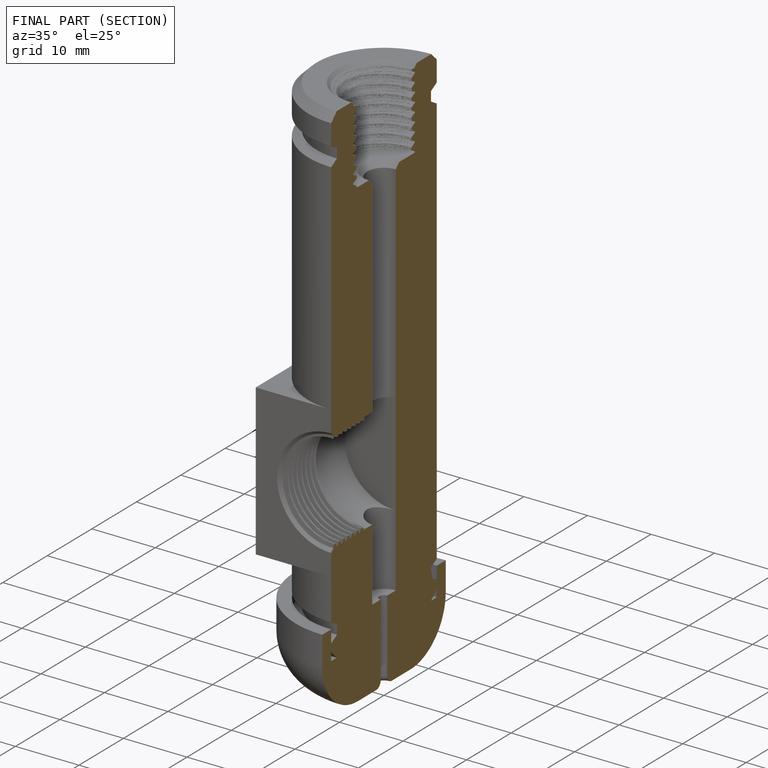
[diagram: finished part — half-section view (interior)]
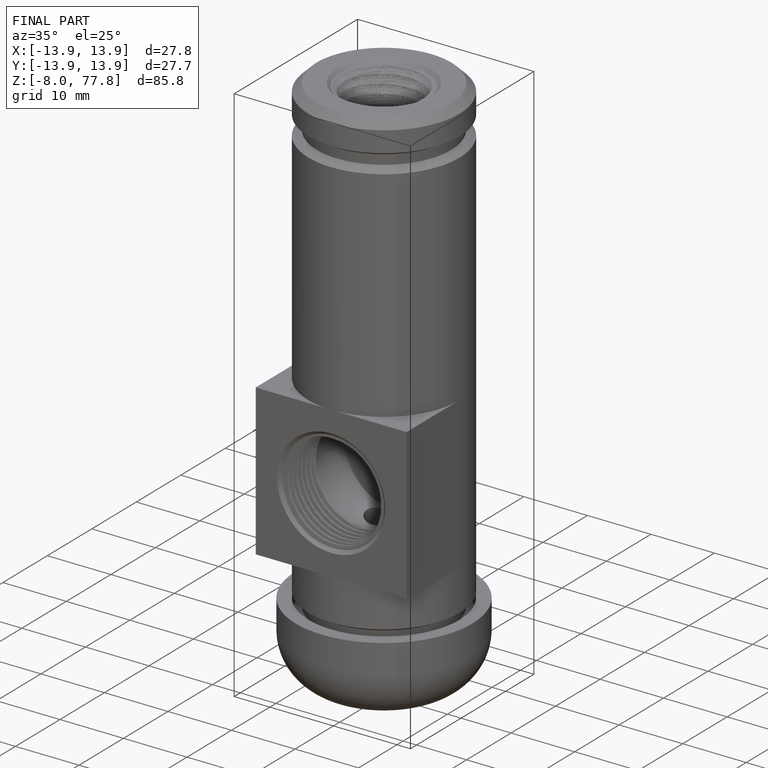
[diagram: finished part — iso view with bounding-box wireframe]
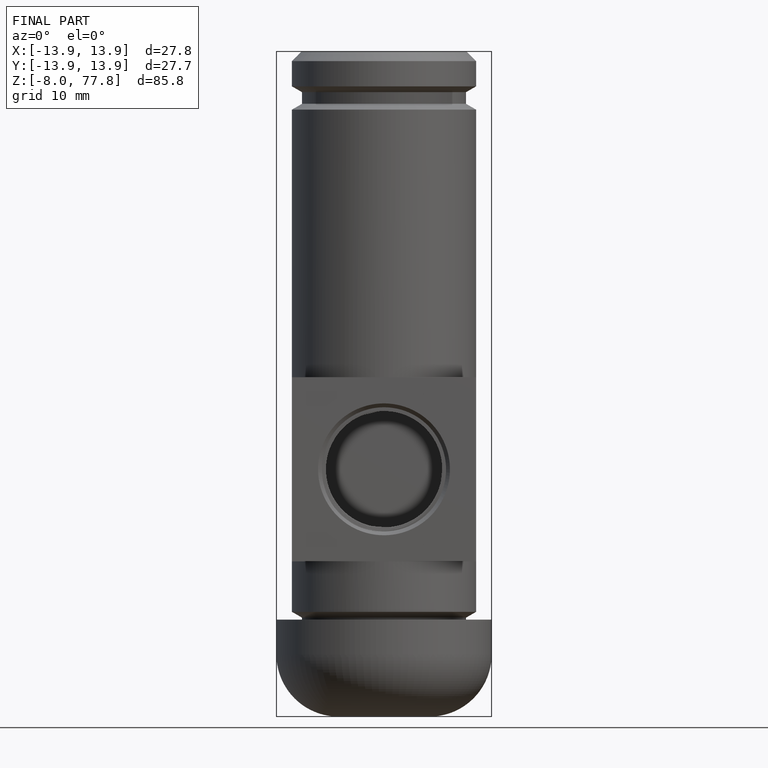
[diagram: finished part — front view with bounding-box wireframe]
